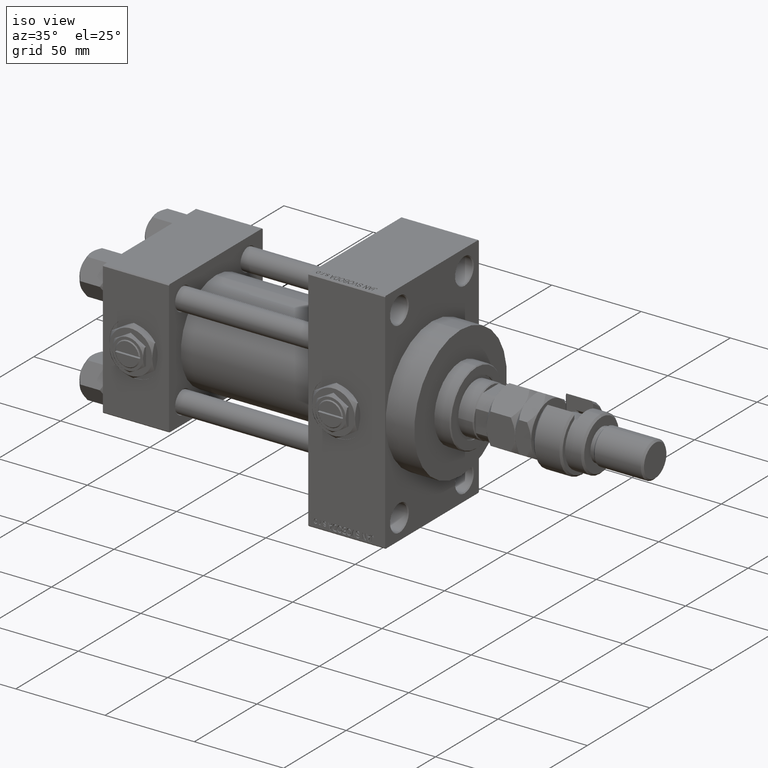
[diagram: clean part render]
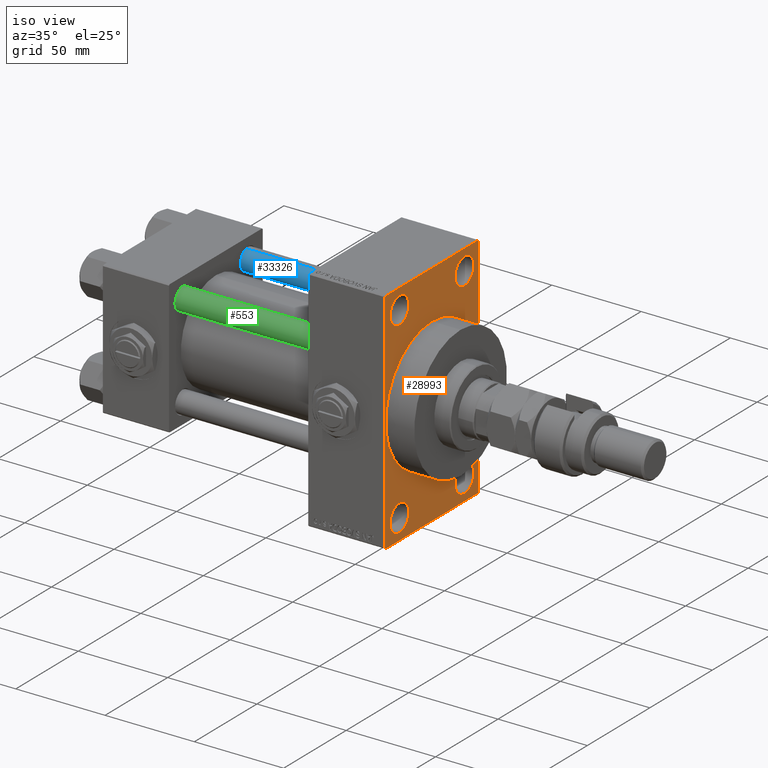
[diagram: same view with three faces highlighted in distinct colors, each labeled with its STEP entity id]
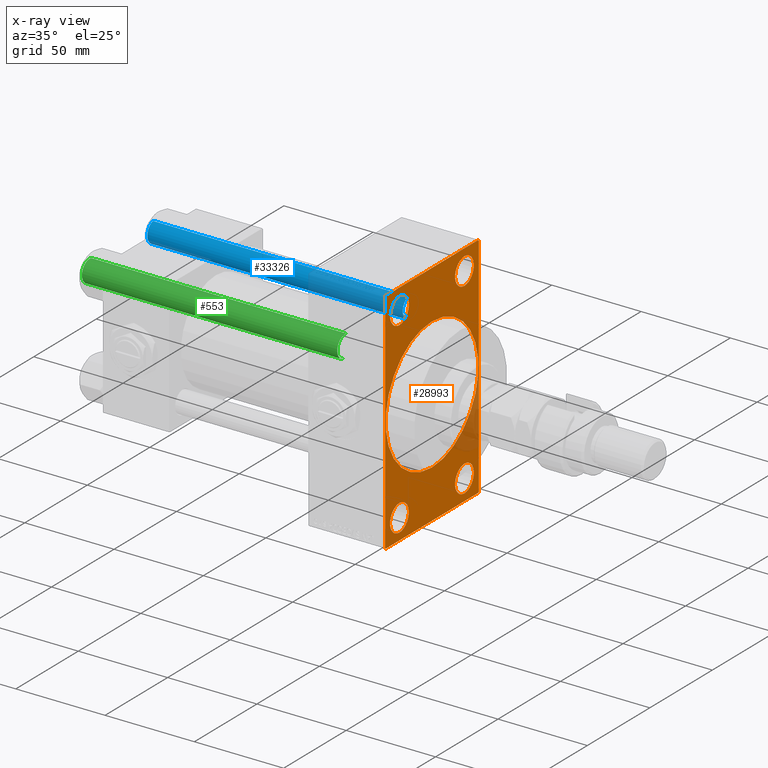
[diagram: x-ray of the same camera — body ghosted, the three highlighted faces saturated]
A machine part, iso view with three faces highlighted in distinct colors.
The next image is the same camera in x-ray (body ghosted, the three faces saturated) — at least one of them is partly hidden behind the body in this view.
Their STEP definitions:

[orange] entity #28993 — the highlighted planar face has unit normal (-1, 0, 0).
#284 = AXIS2_PLACEMENT_3D ( 'NONE', #2064, #26072, #37925 ) ;
#672 = CIRCLE ( 'NONE', #28478, 7.499999999999951150 ) ;
#853 = DIRECTION ( 'NONE',  ( 0.000000000000000000, 0.000000000000000000, 1.000000000000000000 ) ) ;
#1743 = CIRCLE ( 'NONE', #13580, 37.00000000000000000 ) ;
#2064 = CARTESIAN_POINT ( 'NONE',  ( 157.9999999999999716, -25.99999999999999645, 52.50000000000000000 ) ) ;
#2104 = LINE ( 'NONE', #47665, #36714 ) ;
#2199 = ORIENTED_EDGE ( 'NONE', *, *, #32542, .T. ) ;
#2889 = VERTEX_POINT ( 'NONE', #47080 ) ;
#3220 = CIRCLE ( 'NONE', #51305, 7.499999999999951150 ) ;
#3272 = EDGE_CURVE ( 'NONE', #47169, #40013, #20100, .T. ) ;
#5731 = AXIS2_PLACEMENT_3D ( 'NONE', #21193, #49343, #853 ) ;
#6414 = AXIS2_PLACEMENT_3D ( 'NONE', #32064, #28620, #40228 ) ;
#6557 = DIRECTION ( 'NONE',  ( 1.000000000000000000, 0.000000000000000000, 0.000000000000000000 ) ) ;
#6566 = DIRECTION ( 'NONE',  ( 0.000000000000000000, -1.000000000000000000, -1.850371707708594563E-16 ) ) ;
#6678 = VERTEX_POINT ( 'NONE', #43462 ) ;
#7987 = FACE_BOUND ( 'NONE', #19452, .T. ) ;
#8054 = ORIENTED_EDGE ( 'NONE', *, *, #37772, .T. ) ;
#8056 = CARTESIAN_POINT ( 'NONE',  ( 157.9999999999999716, 37.50000000000000000, 63.99999999999998579 ) ) ;
#8074 = LINE ( 'NONE', #13073, #28334 ) ;
#8330 = DIRECTION ( 'NONE',  ( 0.000000000000000000, -0.7071067811865474617, 0.7071067811865474617 ) ) ;
#8572 = EDGE_LOOP ( 'NONE', ( #8054, #38939, #45668, #26985, #9329, #17371, #35339, #17088 ) ) ;
#8828 = AXIS2_PLACEMENT_3D ( 'NONE', #12031, #46872, #10802 ) ;
#9000 = VERTEX_POINT ( 'NONE', #28109 ) ;
#9143 = CARTESIAN_POINT ( 'NONE',  ( 157.9999999999999716, 37.49999999999999289, -63.50000000000001421 ) ) ;
#9329 = ORIENTED_EDGE ( 'NONE', *, *, #35772, .F. ) ;
#9527 = CARTESIAN_POINT ( 'NONE',  ( 157.9999999999999716, 37.49999999999999289, -64.00000000000000000 ) ) ;
#10462 = CARTESIAN_POINT ( 'NONE',  ( 157.9999999999999716, -25.99999999999999645, -52.49999999999999289 ) ) ;
#10802 = DIRECTION ( 'NONE',  ( 0.000000000000000000, 0.000000000000000000, 1.000000000000000000 ) ) ;
#10815 = DIRECTION ( 'NONE',  ( 0.000000000000000000, 0.000000000000000000, 1.000000000000000000 ) ) ;
#11186 = FACE_OUTER_BOUND ( 'NONE', #8572, .T. ) ;
#11967 = FACE_BOUND ( 'NONE', #33617, .T. ) ;
#12031 = CARTESIAN_POINT ( 'NONE',  ( 157.9999999999999716, 26.00000000000000000, 52.49999999999999289 ) ) ;
#12146 = DIRECTION ( 'NONE',  ( 0.000000000000000000, -5.421010862427522170E-17, -1.000000000000000000 ) ) ;
#12202 = EDGE_LOOP ( 'NONE', ( #31850, #25532 ) ) ;
#13034 = ORIENTED_EDGE ( 'NONE', *, *, #42150, .T. ) ;
#13070 = ORIENTED_EDGE ( 'NONE', *, *, #28381, .F. ) ;
#13073 = CARTESIAN_POINT ( 'NONE',  ( 157.9999999999999716, 37.00000000000000000, 63.99999999999998579 ) ) ;
#13464 = CARTESIAN_POINT ( 'NONE',  ( 157.9999999999999716, 26.00000000000000000, 52.49999999999999289 ) ) ;
#13580 = AXIS2_PLACEMENT_3D ( 'NONE', #38570, #30412, #50137 ) ;
#13949 = DIRECTION ( 'NONE',  ( -1.000000000000000000, 0.000000000000000000, -0.000000000000000000 ) ) ;
#14209 = VERTEX_POINT ( 'NONE', #27490 ) ;
#14680 = DIRECTION ( 'NONE',  ( -1.000000000000000000, 0.000000000000000000, -0.000000000000000000 ) ) ;
#14743 = CIRCLE ( 'NONE', #8828, 7.499999999999951150 ) ;
#15151 = FACE_BOUND ( 'NONE', #12202, .T. ) ;
#15390 = CARTESIAN_POINT ( 'NONE',  ( 157.9999999999999716, 4.531193156845206793E-15, -37.00000000000000000 ) ) ;
#15455 = CARTESIAN_POINT ( 'NONE',  ( 157.9999999999999716, 26.00000000000000000, -59.99999999999994316 ) ) ;
#15587 = CARTESIAN_POINT ( 'NONE',  ( 157.9999999999999716, 37.50000000000000000, 63.99999999999998579 ) ) ;
#15991 = VERTEX_POINT ( 'NONE', #42252 ) ;
#16455 = CIRCLE ( 'NONE', #18174, 7.499999999999951150 ) ;
#16506 = EDGE_CURVE ( 'NONE', #43654, #28888, #49955, .T. ) ;
#16702 = VECTOR ( 'NONE', #36661, 999.9999999999998863 ) ;
#17088 = ORIENTED_EDGE ( 'NONE', *, *, #26015, .T. ) ;
#17371 = ORIENTED_EDGE ( 'NONE', *, *, #38400, .T. ) ;
#17647 = CARTESIAN_POINT ( 'NONE',  ( 157.9999999999999716, 26.00000000000000000, -52.49999999999999289 ) ) ;
#17791 = VERTEX_POINT ( 'NONE', #28233 ) ;
#18012 = ORIENTED_EDGE ( 'NONE', *, *, #22837, .T. ) ;
#18174 = AXIS2_PLACEMENT_3D ( 'NONE', #13464, #42934, #10815 ) ;
#19361 = PLANE ( 'NONE',  #44383 ) ;
#19452 = EDGE_LOOP ( 'NONE', ( #30847, #13070 ) ) ;
#20058 = LINE ( 'NONE', #15587, #25705 ) ;
#20100 = LINE ( 'NONE', #20605, #42886 ) ;
#20605 = CARTESIAN_POINT ( 'NONE',  ( 157.9999999999999716, -36.99999999999996447, -64.00000000000001421 ) ) ;
#20768 = VERTEX_POINT ( 'NONE', #35546 ) ;
#20772 = LINE ( 'NONE', #9143, #35984 ) ;
#21193 = CARTESIAN_POINT ( 'NONE',  ( 157.9999999999999716, -25.99999999999999645, 52.50000000000000000 ) ) ;
#21599 = DIRECTION ( 'NONE',  ( 0.000000000000000000, 0.000000000000000000, 1.000000000000000000 ) ) ;
#22837 = EDGE_CURVE ( 'NONE', #47872, #2889, #50193, .T. ) ;
#23568 = CARTESIAN_POINT ( 'NONE',  ( 157.9999999999999716, 37.00000000000002132, -64.00000000000000000 ) ) ;
#23830 = FACE_BOUND ( 'NONE', #32207, .T. ) ;
#24335 = CARTESIAN_POINT ( 'NONE',  ( 157.9999999999999716, 0.000000000000000000, 0.000000000000000000 ) ) ;
#24829 = VECTOR ( 'NONE', #6566, 1000.000000000000000 ) ;
#25137 = CARTESIAN_POINT ( 'NONE',  ( 157.9999999999999716, 37.50000000000000000, 63.49999999999998579 ) ) ;
#25365 = DIRECTION ( 'NONE',  ( -1.000000000000000000, 0.000000000000000000, -0.000000000000000000 ) ) ;
#25532 = ORIENTED_EDGE ( 'NONE', *, *, #44617, .T. ) ;
#25705 = VECTOR ( 'NONE', #12146, 1000.000000000000000 ) ;
#26015 = EDGE_CURVE ( 'NONE', #15991, #29826, #32956, .T. ) ;
#26072 = DIRECTION ( 'NONE',  ( -1.000000000000000000, 0.000000000000000000, -0.000000000000000000 ) ) ;
#26819 = EDGE_CURVE ( 'NONE', #28888, #43654, #28469, .T. ) ;
#26985 = ORIENTED_EDGE ( 'NONE', *, *, #28512, .T. ) ;
#27490 = CARTESIAN_POINT ( 'NONE',  ( 157.9999999999999716, 26.00000000000000000, 59.99999999999994316 ) ) ;
#28027 = FACE_BOUND ( 'NONE', #37014, .T. ) ;
#28109 = CARTESIAN_POINT ( 'NONE',  ( 157.9999999999999716, 26.00000000000000000, -45.00000000000004263 ) ) ;
#28233 = CARTESIAN_POINT ( 'NONE',  ( 157.9999999999999716, 37.00000000000000000, 63.99999999999998579 ) ) ;
#28247 = CARTESIAN_POINT ( 'NONE',  ( 157.9999999999999716, -37.49999999999999289, 63.49999999999997158 ) ) ;
#28334 = VECTOR ( 'NONE', #8330, 1000.000000000000114 ) ;
#28381 = EDGE_CURVE ( 'NONE', #47189, #20768, #48592, .T. ) ;
#28469 = CIRCLE ( 'NONE', #5731, 7.499999999999951150 ) ;
#28478 = AXIS2_PLACEMENT_3D ( 'NONE', #10462, #14680, #42587 ) ;
#28512 = EDGE_CURVE ( 'NONE', #41267, #6678, #20772, .T. ) ;
#28620 = DIRECTION ( 'NONE',  ( -1.000000000000000000, 0.000000000000000000, -0.000000000000000000 ) ) ;
#28888 = VERTEX_POINT ( 'NONE', #39113 ) ;
#28993 = ADVANCED_FACE ( 'NONE', ( #11967, #28027, #15151, #23830, #7987, #11186 ), #19361, .F. ) ;
#29190 = AXIS2_PLACEMENT_3D ( 'NONE', #17647, #13949, #21599 ) ;
#29471 = DIRECTION ( 'NONE',  ( 0.000000000000000000, 0.000000000000000000, 1.000000000000000000 ) ) ;
#29561 = LINE ( 'NONE', #9527, #48720 ) ;
#29826 = VERTEX_POINT ( 'NONE', #39387 ) ;
#30102 = DIRECTION ( 'NONE',  ( 0.000000000000000000, -1.000000000000000000, -1.850371707708594563E-16 ) ) ;
#30412 = DIRECTION ( 'NONE',  ( 1.000000000000000000, 0.000000000000000000, 0.000000000000000000 ) ) ;
#30847 = ORIENTED_EDGE ( 'NONE', *, *, #51214, .F. ) ;
#30909 = CIRCLE ( 'NONE', #29190, 7.499999999999951150 ) ;
#31290 = ORIENTED_EDGE ( 'NONE', *, *, #31785, .T. ) ;
#31694 = EDGE_CURVE ( 'NONE', #17791, #15991, #38983, .T. ) ;
#31785 = EDGE_CURVE ( 'NONE', #37397, #14209, #14743, .T. ) ;
#31787 = AXIS2_PLACEMENT_3D ( 'NONE', #42657, #6557, #35026 ) ;
#31850 = ORIENTED_EDGE ( 'NONE', *, *, #39486, .T. ) ;
#32064 = CARTESIAN_POINT ( 'NONE',  ( 157.9999999999999716, -25.99999999999999645, -52.49999999999999289 ) ) ;
#32207 = EDGE_LOOP ( 'NONE', ( #31290, #2199 ) ) ;
#32542 = EDGE_CURVE ( 'NONE', #14209, #37397, #16455, .T. ) ;
#32956 = LINE ( 'NONE', #28247, #16702 ) ;
#33617 = EDGE_LOOP ( 'NONE', ( #45861, #41977 ) ) ;
#34838 = CARTESIAN_POINT ( 'NONE',  ( 157.9999999999999716, -25.99999999999999645, 59.99999999999995026 ) ) ;
#35026 = DIRECTION ( 'NONE',  ( 0.000000000000000000, 0.000000000000000000, -1.000000000000000000 ) ) ;
#35339 = ORIENTED_EDGE ( 'NONE', *, *, #31694, .T. ) ;
#35546 = CARTESIAN_POINT ( 'NONE',  ( 157.9999999999999716, 0.000000000000000000, 37.00000000000000000 ) ) ;
#35772 = EDGE_CURVE ( 'NONE', #50995, #6678, #20058, .T. ) ;
#35984 = VECTOR ( 'NONE', #36827, 1000.000000000000114 ) ;
#36661 = DIRECTION ( 'NONE',  ( -0.000000000000000000, -0.7071067811865525687, -0.7071067811865425767 ) ) ;
#36714 = VECTOR ( 'NONE', #47152, 1000.000000000000000 ) ;
#36827 = DIRECTION ( 'NONE',  ( -0.000000000000000000, 0.7071067811865376918, 0.7071067811865573427 ) ) ;
#37014 = EDGE_LOOP ( 'NONE', ( #13034, #18012 ) ) ;
#37397 = VERTEX_POINT ( 'NONE', #46689 ) ;
#37772 = EDGE_CURVE ( 'NONE', #29826, #47169, #2104, .T. ) ;
#37925 = DIRECTION ( 'NONE',  ( 0.000000000000000000, 0.000000000000000000, 1.000000000000000000 ) ) ;
#38400 = EDGE_CURVE ( 'NONE', #50995, #17791, #8074, .T. ) ;
#38570 = CARTESIAN_POINT ( 'NONE',  ( 157.9999999999999716, 0.000000000000000000, 0.000000000000000000 ) ) ;
#38682 = CARTESIAN_POINT ( 'NONE',  ( 157.9999999999999716, 26.00000000000000000, -52.49999999999999289 ) ) ;
#38939 = ORIENTED_EDGE ( 'NONE', *, *, #3272, .T. ) ;
#38983 = LINE ( 'NONE', #8056, #24829 ) ;
#39113 = CARTESIAN_POINT ( 'NONE',  ( 157.9999999999999716, -25.99999999999999645, 45.00000000000004974 ) ) ;
#39387 = CARTESIAN_POINT ( 'NONE',  ( 157.9999999999999716, -37.49999999999999289, 63.49999999999997158 ) ) ;
#39486 = EDGE_CURVE ( 'NONE', #47919, #9000, #30909, .T. ) ;
#39848 = DIRECTION ( 'NONE',  ( 0.000000000000000000, 0.7071067811865378028, -0.7071067811865573427 ) ) ;
#40013 = VERTEX_POINT ( 'NONE', #43612 ) ;
#40228 = DIRECTION ( 'NONE',  ( 0.000000000000000000, 0.000000000000000000, 1.000000000000000000 ) ) ;
#41267 = VERTEX_POINT ( 'NONE', #23568 ) ;
#41977 = ORIENTED_EDGE ( 'NONE', *, *, #16506, .T. ) ;
#42150 = EDGE_CURVE ( 'NONE', #2889, #47872, #672, .T. ) ;
#42252 = CARTESIAN_POINT ( 'NONE',  ( 157.9999999999999716, -36.99999999999998579, 63.99999999999997158 ) ) ;
#42587 = DIRECTION ( 'NONE',  ( 0.000000000000000000, 0.000000000000000000, 1.000000000000000000 ) ) ;
#42657 = CARTESIAN_POINT ( 'NONE',  ( 157.9999999999999716, 0.000000000000000000, 0.000000000000000000 ) ) ;
#42886 = VECTOR ( 'NONE', #39848, 1000.000000000000000 ) ;
#42934 = DIRECTION ( 'NONE',  ( -1.000000000000000000, 0.000000000000000000, -0.000000000000000000 ) ) ;
#43031 = CARTESIAN_POINT ( 'NONE',  ( 157.9999999999999716, -37.49999999999999289, -63.49999999999997158 ) ) ;
#43462 = CARTESIAN_POINT ( 'NONE',  ( 157.9999999999999716, 37.49999999999999289, -63.50000000000001421 ) ) ;
#43612 = CARTESIAN_POINT ( 'NONE',  ( 157.9999999999999716, -36.99999999999996447, -64.00000000000001421 ) ) ;
#43654 = VERTEX_POINT ( 'NONE', #34838 ) ;
#44329 = DIRECTION ( 'NONE',  ( -0.000000000000000000, 0.000000000000000000, 1.000000000000000000 ) ) ;
#44383 = AXIS2_PLACEMENT_3D ( 'NONE', #24335, #25365, #44329 ) ;
#44617 = EDGE_CURVE ( 'NONE', #9000, #47919, #3220, .T. ) ;
#45668 = ORIENTED_EDGE ( 'NONE', *, *, #47392, .F. ) ;
#45861 = ORIENTED_EDGE ( 'NONE', *, *, #26819, .T. ) ;
#46302 = DIRECTION ( 'NONE',  ( -1.000000000000000000, 0.000000000000000000, -0.000000000000000000 ) ) ;
#46689 = CARTESIAN_POINT ( 'NONE',  ( 157.9999999999999716, 26.00000000000000000, 45.00000000000004263 ) ) ;
#46872 = DIRECTION ( 'NONE',  ( -1.000000000000000000, 0.000000000000000000, -0.000000000000000000 ) ) ;
#47080 = CARTESIAN_POINT ( 'NONE',  ( 157.9999999999999716, -25.99999999999999645, -59.99999999999994316 ) ) ;
#47152 = DIRECTION ( 'NONE',  ( 0.000000000000000000, 0.000000000000000000, -1.000000000000000000 ) ) ;
#47169 = VERTEX_POINT ( 'NONE', #43031 ) ;
#47189 = VERTEX_POINT ( 'NONE', #15390 ) ;
#47392 = EDGE_CURVE ( 'NONE', #41267, #40013, #29561, .T. ) ;
#47665 = CARTESIAN_POINT ( 'NONE',  ( 157.9999999999999716, -37.49999999999999289, 63.99999999999997158 ) ) ;
#47872 = VERTEX_POINT ( 'NONE', #52051 ) ;
#47919 = VERTEX_POINT ( 'NONE', #15455 ) ;
#48592 = CIRCLE ( 'NONE', #31787, 37.00000000000000000 ) ;
#48720 = VECTOR ( 'NONE', #30102, 1000.000000000000000 ) ;
#49343 = DIRECTION ( 'NONE',  ( -1.000000000000000000, 0.000000000000000000, -0.000000000000000000 ) ) ;
#49955 = CIRCLE ( 'NONE', #284, 7.499999999999951150 ) ;
#50137 = DIRECTION ( 'NONE',  ( 0.000000000000000000, 0.000000000000000000, -1.000000000000000000 ) ) ;
#50193 = CIRCLE ( 'NONE', #6414, 7.499999999999951150 ) ;
#50995 = VERTEX_POINT ( 'NONE', #25137 ) ;
#51214 = EDGE_CURVE ( 'NONE', #20768, #47189, #1743, .T. ) ;
#51305 = AXIS2_PLACEMENT_3D ( 'NONE', #38682, #46302, #29471 ) ;
#52051 = CARTESIAN_POINT ( 'NONE',  ( 157.9999999999999716, -25.99999999999999645, -45.00000000000004263 ) ) ;

[blue] entity #33326 — the highlighted cylindrical surface (edge-blend (fillet) strip) has radius 6 mm, axis along (-1, -0, 0).
#886 = CARTESIAN_POINT ( 'NONE',  ( 6.000000000000000888, 7.347880794884120722E-16, 144.0000000000000000 ) ) ;
#1627 = DIRECTION ( 'NONE',  ( 0.000000000000000000, 0.000000000000000000, -1.000000000000000000 ) ) ;
#1917 = EDGE_CURVE ( 'NONE', #32520, #6250, #16951, .T. ) ;
#4693 = ORIENTED_EDGE ( 'NONE', *, *, #7783, .F. ) ;
#4909 = DIRECTION ( 'NONE',  ( -0.000000000000000000, -0.000000000000000000, -1.000000000000000000 ) ) ;
#5167 = CYLINDRICAL_SURFACE ( 'NONE', #26465, 6.000000000000000888 ) ;
#5305 = CARTESIAN_POINT ( 'NONE',  ( 0.000000000000000000, 0.000000000000000000, 143.5000000000000000 ) ) ;
#5373 = DIRECTION ( 'NONE',  ( -0.000000000000000000, -0.000000000000000000, -1.000000000000000000 ) ) ;
#6047 = CARTESIAN_POINT ( 'NONE',  ( -6.000000000000000888, 0.000000000000000000, 143.5000000000000000 ) ) ;
#6250 = VERTEX_POINT ( 'NONE', #33813 ) ;
#7475 = CIRCLE ( 'NONE', #49509, 6.000000000000000888 ) ;
#7783 = EDGE_CURVE ( 'NONE', #20425, #28430, #13049, .T. ) ;
#7849 = CARTESIAN_POINT ( 'NONE',  ( 6.000000000000000888, 7.347880794884120722E-16, 0.5000000000000004441 ) ) ;
#13049 = LINE ( 'NONE', #886, #13594 ) ;
#13594 = VECTOR ( 'NONE', #5373, 1000.000000000000000 ) ;
#15350 = CARTESIAN_POINT ( 'NONE',  ( 6.000000000000000888, 7.347880794884120722E-16, 143.5000000000000000 ) ) ;
#16951 = LINE ( 'NONE', #20914, #17166 ) ;
#17057 = DIRECTION ( 'NONE',  ( -1.000000000000000000, 0.000000000000000000, 0.000000000000000000 ) ) ;
#17166 = VECTOR ( 'NONE', #25113, 1000.000000000000000 ) ;
#19141 = DIRECTION ( 'NONE',  ( -0.000000000000000000, -0.000000000000000000, 1.000000000000000000 ) ) ;
#19298 = ORIENTED_EDGE ( 'NONE', *, *, #46061, .T. ) ;
#20256 = EDGE_CURVE ( 'NONE', #20425, #32520, #32456, .T. ) ;
#20425 = VERTEX_POINT ( 'NONE', #15350 ) ;
#20914 = CARTESIAN_POINT ( 'NONE',  ( -6.000000000000000888, 0.000000000000000000, 144.0000000000000000 ) ) ;
#21776 = ORIENTED_EDGE ( 'NONE', *, *, #20256, .T. ) ;
#22209 = DIRECTION ( 'NONE',  ( 1.000000000000000000, 0.000000000000000000, 0.000000000000000000 ) ) ;
#24450 = FACE_OUTER_BOUND ( 'NONE', #31845, .T. ) ;
#25113 = DIRECTION ( 'NONE',  ( -0.000000000000000000, -0.000000000000000000, -1.000000000000000000 ) ) ;
#25741 = AXIS2_PLACEMENT_3D ( 'NONE', #5305, #1627, #22209 ) ;
#26465 = AXIS2_PLACEMENT_3D ( 'NONE', #44443, #4909, #17057 ) ;
#28430 = VERTEX_POINT ( 'NONE', #7849 ) ;
#31111 = ORIENTED_EDGE ( 'NONE', *, *, #1917, .T. ) ;
#31845 = EDGE_LOOP ( 'NONE', ( #4693, #21776, #31111, #19298 ) ) ;
#32456 = CIRCLE ( 'NONE', #25741, 6.000000000000000888 ) ;
#32520 = VERTEX_POINT ( 'NONE', #6047 ) ;
#33326 = ADVANCED_FACE ( 'NONE', ( #24450 ), #5167, .T. ) ;
#33813 = CARTESIAN_POINT ( 'NONE',  ( -6.000000000000000888, 0.000000000000000000, 0.5000000000000004441 ) ) ;
#34933 = DIRECTION ( 'NONE',  ( 1.000000000000000000, 0.000000000000000000, 0.000000000000000000 ) ) ;
#43345 = CARTESIAN_POINT ( 'NONE',  ( 0.000000000000000000, 0.000000000000000000, 0.5000000000000004441 ) ) ;
#44443 = CARTESIAN_POINT ( 'NONE',  ( 0.000000000000000000, 0.000000000000000000, 144.0000000000000000 ) ) ;
#46061 = EDGE_CURVE ( 'NONE', #6250, #28430, #7475, .T. ) ;
#49509 = AXIS2_PLACEMENT_3D ( 'NONE', #43345, #19141, #34933 ) ;

[green] entity #553 — the highlighted cylindrical surface (edge-blend (fillet) strip) has radius 6 mm, axis along (1, 0, 0).
#92 = EDGE_CURVE ( 'NONE', #32520, #20425, #6199, .T. ) ;
#553 = ADVANCED_FACE ( 'NONE', ( #50732 ), #34153, .T. ) ;
#886 = CARTESIAN_POINT ( 'NONE',  ( 6.000000000000000888, 7.347880794884120722E-16, 144.0000000000000000 ) ) ;
#1917 = EDGE_CURVE ( 'NONE', #32520, #6250, #16951, .T. ) ;
#5373 = DIRECTION ( 'NONE',  ( -0.000000000000000000, -0.000000000000000000, -1.000000000000000000 ) ) ;
#6047 = CARTESIAN_POINT ( 'NONE',  ( -6.000000000000000888, 0.000000000000000000, 143.5000000000000000 ) ) ;
#6199 = CIRCLE ( 'NONE', #7854, 6.000000000000000888 ) ;
#6250 = VERTEX_POINT ( 'NONE', #33813 ) ;
#7158 = CARTESIAN_POINT ( 'NONE',  ( 0.000000000000000000, 0.000000000000000000, 0.5000000000000004441 ) ) ;
#7783 = EDGE_CURVE ( 'NONE', #20425, #28430, #13049, .T. ) ;
#7849 = CARTESIAN_POINT ( 'NONE',  ( 6.000000000000000888, 7.347880794884120722E-16, 0.5000000000000004441 ) ) ;
#7854 = AXIS2_PLACEMENT_3D ( 'NONE', #47166, #27429, #11349 ) ;
#9623 = CIRCLE ( 'NONE', #19727, 6.000000000000000888 ) ;
#10572 = ORIENTED_EDGE ( 'NONE', *, *, #1917, .F. ) ;
#11349 = DIRECTION ( 'NONE',  ( 1.000000000000000000, 0.000000000000000000, 0.000000000000000000 ) ) ;
#13049 = LINE ( 'NONE', #886, #13594 ) ;
#13594 = VECTOR ( 'NONE', #5373, 1000.000000000000000 ) ;
#14672 = ORIENTED_EDGE ( 'NONE', *, *, #7783, .T. ) ;
#14835 = DIRECTION ( 'NONE',  ( -0.000000000000000000, -0.000000000000000000, 1.000000000000000000 ) ) ;
#15350 = CARTESIAN_POINT ( 'NONE',  ( 6.000000000000000888, 7.347880794884120722E-16, 143.5000000000000000 ) ) ;
#16951 = LINE ( 'NONE', #20914, #17166 ) ;
#17166 = VECTOR ( 'NONE', #25113, 1000.000000000000000 ) ;
#17592 = EDGE_CURVE ( 'NONE', #28430, #6250, #9623, .T. ) ;
#19690 = AXIS2_PLACEMENT_3D ( 'NONE', #38894, #50205, #22571 ) ;
#19727 = AXIS2_PLACEMENT_3D ( 'NONE', #7158, #14835, #30639 ) ;
#20425 = VERTEX_POINT ( 'NONE', #15350 ) ;
#20914 = CARTESIAN_POINT ( 'NONE',  ( -6.000000000000000888, 0.000000000000000000, 144.0000000000000000 ) ) ;
#22571 = DIRECTION ( 'NONE',  ( -1.000000000000000000, 0.000000000000000000, 0.000000000000000000 ) ) ;
#24318 = ORIENTED_EDGE ( 'NONE', *, *, #17592, .T. ) ;
#25113 = DIRECTION ( 'NONE',  ( -0.000000000000000000, -0.000000000000000000, -1.000000000000000000 ) ) ;
#27429 = DIRECTION ( 'NONE',  ( 0.000000000000000000, 0.000000000000000000, -1.000000000000000000 ) ) ;
#28430 = VERTEX_POINT ( 'NONE', #7849 ) ;
#28470 = EDGE_LOOP ( 'NONE', ( #49744, #14672, #24318, #10572 ) ) ;
#30639 = DIRECTION ( 'NONE',  ( 1.000000000000000000, 0.000000000000000000, 0.000000000000000000 ) ) ;
#32520 = VERTEX_POINT ( 'NONE', #6047 ) ;
#33813 = CARTESIAN_POINT ( 'NONE',  ( -6.000000000000000888, 0.000000000000000000, 0.5000000000000004441 ) ) ;
#34153 = CYLINDRICAL_SURFACE ( 'NONE', #19690, 6.000000000000000888 ) ;
#38894 = CARTESIAN_POINT ( 'NONE',  ( 0.000000000000000000, 0.000000000000000000, 144.0000000000000000 ) ) ;
#47166 = CARTESIAN_POINT ( 'NONE',  ( 0.000000000000000000, 0.000000000000000000, 143.5000000000000000 ) ) ;
#49744 = ORIENTED_EDGE ( 'NONE', *, *, #92, .T. ) ;
#50205 = DIRECTION ( 'NONE',  ( -0.000000000000000000, -0.000000000000000000, -1.000000000000000000 ) ) ;
#50732 = FACE_OUTER_BOUND ( 'NONE', #28470, .T. ) ;